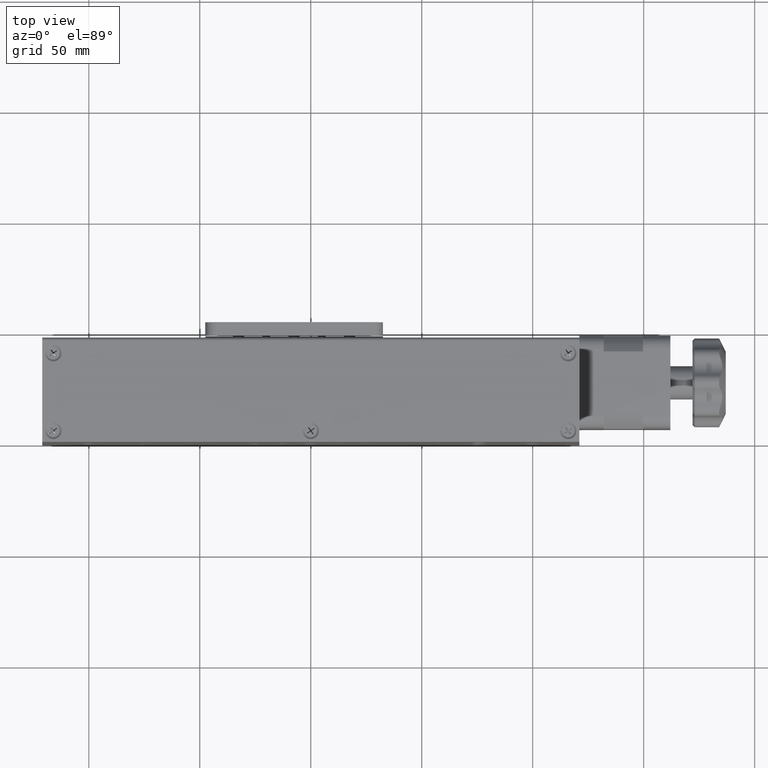
[diagram: clean part render]
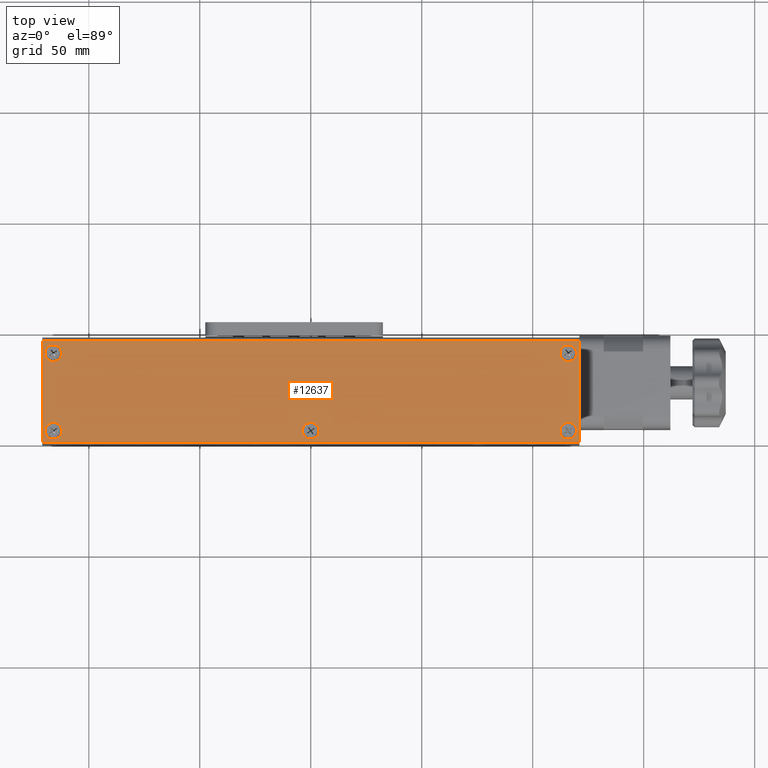
[diagram: same view with one face highlighted and labeled with its STEP entity id]
A machine part, top view. The second image highlights one B-rep face of the part: STEP entity #12637.
In plain terms, the highlighted planar face has unit normal (0, -0, -1).
Its self-contained STEP definition (entity closure, byte-faithful):
#51 = CARTESIAN_POINT ( 'NONE',  ( 121.0000000000000000, 45.50000000000001400, 52.00000000000010700 ) ) ;
#362 = DIRECTION ( 'NONE',  ( 1.000000000000000000, 0.0000000000000000000, 0.0000000000000000000 ) ) ;
#376 = DIRECTION ( 'NONE',  ( 0.0000000000000000000, -1.000000000000000000, 1.525031627232357900E-016 ) ) ;
#579 = CIRCLE ( 'NONE', #1694, 3.750000000000003600 ) ;
#600 = ORIENTED_EDGE ( 'NONE', *, *, #31641, .F. ) ;
#659 = CARTESIAN_POINT ( 'NONE',  ( -112.2499999999999900, 39.99999999999998600, 52.00000000000011400 ) ) ;
#899 = EDGE_LOOP ( 'NONE', ( #24051, #600, #17396, #32157 ) ) ;
#954 = DIRECTION ( 'NONE',  ( 1.000000000000000000, 0.0000000000000000000, 0.0000000000000000000 ) ) ;
#1665 = DIRECTION ( 'NONE',  ( 1.000000000000000000, 0.0000000000000000000, 0.0000000000000000000 ) ) ;
#1694 = AXIS2_PLACEMENT_3D ( 'NONE', #34616, #18078, #1665 ) ;
#2291 = AXIS2_PLACEMENT_3D ( 'NONE', #25366, #8876, #28117 ) ;
#2384 = EDGE_CURVE ( 'NONE', #15927, #9647, #30871, .T. ) ;
#3538 = CARTESIAN_POINT ( 'NONE',  ( -115.9999999999999900, 4.999999999999985800, 52.00000000000011400 ) ) ;
#4715 = DIRECTION ( 'NONE',  ( -0.0000000000000000000, -0.0000000000000000000, 1.000000000000000000 ) ) ;
#4760 = AXIS2_PLACEMENT_3D ( 'NONE', #33927, #17395, #954 ) ;
#5715 = VERTEX_POINT ( 'NONE', #19764 ) ;
#5749 = CARTESIAN_POINT ( 'NONE',  ( -119.7500000000000000, 39.99999999999998600, 52.00000000000011400 ) ) ;
#5826 = CARTESIAN_POINT ( 'NONE',  ( -3.750000000000000000, 5.000000000000015100, 52.00000000000011400 ) ) ;
#6279 = DIRECTION ( 'NONE',  ( 1.000000000000000000, 0.0000000000000000000, 0.0000000000000000000 ) ) ;
#6361 = FACE_BOUND ( 'NONE', #22149, .T. ) ;
#7497 = AXIS2_PLACEMENT_3D ( 'NONE', #33286, #16777, #362 ) ;
#7779 = VECTOR ( 'NONE', #26022, 1000.000000000000000 ) ;
#7856 = PLANE ( 'NONE',  #10056 ) ;
#8191 = AXIS2_PLACEMENT_3D ( 'NONE', #15615, #4715, #21110 ) ;
#8342 = EDGE_CURVE ( 'NONE', #27221, #26449, #34722, .T. ) ;
#8528 = CIRCLE ( 'NONE', #26811, 3.750000000000000000 ) ;
#8848 = DIRECTION ( 'NONE',  ( -0.0000000000000000000, -0.0000000000000000000, 1.000000000000000000 ) ) ;
#8876 = DIRECTION ( 'NONE',  ( -0.0000000000000000000, -0.0000000000000000000, 1.000000000000000000 ) ) ;
#9585 = CIRCLE ( 'NONE', #33686, 3.750000000000003600 ) ;
#9647 = VERTEX_POINT ( 'NONE', #33145 ) ;
#9663 = VERTEX_POINT ( 'NONE', #5826 ) ;
#9979 = AXIS2_PLACEMENT_3D ( 'NONE', #27485, #11044, #30267 ) ;
#10056 = AXIS2_PLACEMENT_3D ( 'NONE', #32747, #16245, #35528 ) ;
#11044 = DIRECTION ( 'NONE',  ( -0.0000000000000000000, -0.0000000000000000000, 1.000000000000000000 ) ) ;
#11578 = ORIENTED_EDGE ( 'NONE', *, *, #22949, .F. ) ;
#11645 = EDGE_CURVE ( 'NONE', #24997, #5715, #17609, .T. ) ;
#11888 = ORIENTED_EDGE ( 'NONE', *, *, #2384, .F. ) ;
#12237 = VERTEX_POINT ( 'NONE', #659 ) ;
#12637 = ADVANCED_FACE ( 'NONE', ( #21816, #6361, #35649, #13640, #34772, #27411 ), #7856, .F. ) ;
#12745 = CARTESIAN_POINT ( 'NONE',  ( -115.9999999999999900, 39.99999999999998600, 52.00000000000011400 ) ) ;
#13640 = FACE_BOUND ( 'NONE', #16489, .T. ) ;
#14325 = VERTEX_POINT ( 'NONE', #18120 ) ;
#14476 = DIRECTION ( 'NONE',  ( -1.000000000000000000, -0.0000000000000000000, -0.0000000000000000000 ) ) ;
#14609 = VERTEX_POINT ( 'NONE', #5749 ) ;
#14858 = CARTESIAN_POINT ( 'NONE',  ( -121.0000000000000000, 45.50000000000001400, 52.00000000000010700 ) ) ;
#14903 = CARTESIAN_POINT ( 'NONE',  ( 119.7500000000000000, 40.00000000000001400, 52.00000000000011400 ) ) ;
#15357 = VERTEX_POINT ( 'NONE', #22995 ) ;
#15530 = DIRECTION ( 'NONE',  ( 1.000000000000000000, 0.0000000000000000000, 0.0000000000000000000 ) ) ;
#15615 = CARTESIAN_POINT ( 'NONE',  ( 115.9999999999999900, 40.00000000000001400, 52.00000000000011400 ) ) ;
#15700 = EDGE_CURVE ( 'NONE', #24997, #29425, #22873, .T. ) ;
#15770 = DIRECTION ( 'NONE',  ( -0.0000000000000000000, -0.0000000000000000000, 1.000000000000000000 ) ) ;
#15927 = VERTEX_POINT ( 'NONE', #14903 ) ;
#16210 = ORIENTED_EDGE ( 'NONE', *, *, #28829, .F. ) ;
#16245 = DIRECTION ( 'NONE',  ( 0.0000000000000000000, -1.525031627232357900E-016, -1.000000000000000000 ) ) ;
#16382 = EDGE_CURVE ( 'NONE', #9647, #15927, #24924, .T. ) ;
#16417 = VECTOR ( 'NONE', #16462, 1000.000000000000000 ) ;
#16462 = DIRECTION ( 'NONE',  ( -1.000000000000000000, -0.0000000000000000000, -0.0000000000000000000 ) ) ;
#16489 = EDGE_LOOP ( 'NONE', ( #17258, #16611 ) ) ;
#16611 = ORIENTED_EDGE ( 'NONE', *, *, #21625, .F. ) ;
#16777 = DIRECTION ( 'NONE',  ( -0.0000000000000000000, -0.0000000000000000000, 1.000000000000000000 ) ) ;
#17010 = CIRCLE ( 'NONE', #32830, 3.750000000000003600 ) ;
#17258 = ORIENTED_EDGE ( 'NONE', *, *, #27124, .F. ) ;
#17356 = ORIENTED_EDGE ( 'NONE', *, *, #8342, .F. ) ;
#17395 = DIRECTION ( 'NONE',  ( -0.0000000000000000000, -0.0000000000000000000, 1.000000000000000000 ) ) ;
#17396 = ORIENTED_EDGE ( 'NONE', *, *, #11645, .F. ) ;
#17609 = LINE ( 'NONE', #30626, #32296 ) ;
#18078 = DIRECTION ( 'NONE',  ( -0.0000000000000000000, -0.0000000000000000000, 1.000000000000000000 ) ) ;
#18120 = CARTESIAN_POINT ( 'NONE',  ( 3.750000000000000000, 5.000000000000014200, 52.00000000000011400 ) ) ;
#18161 = CARTESIAN_POINT ( 'NONE',  ( 121.0000000000000000, 45.50000000000001400, 52.00000000000010700 ) ) ;
#18794 = EDGE_LOOP ( 'NONE', ( #11578, #17356 ) ) ;
#18888 = ORIENTED_EDGE ( 'NONE', *, *, #16382, .F. ) ;
#19764 = CARTESIAN_POINT ( 'NONE',  ( 121.0000000000000000, 1.421085471520200400E-014, 52.00000000000011400 ) ) ;
#20438 = CARTESIAN_POINT ( 'NONE',  ( -121.0000000000000000, 45.50000000000001400, 52.00000000000010700 ) ) ;
#21110 = DIRECTION ( 'NONE',  ( 1.000000000000000000, 0.0000000000000000000, 0.0000000000000000000 ) ) ;
#21279 = CARTESIAN_POINT ( 'NONE',  ( 112.2499999999999900, 5.000000000000015100, 52.00000000000011400 ) ) ;
#21625 = EDGE_CURVE ( 'NONE', #14609, #12237, #579, .T. ) ;
#21816 = FACE_BOUND ( 'NONE', #18794, .T. ) ;
#22149 = EDGE_LOOP ( 'NONE', ( #11888, #18888 ) ) ;
#22346 = LINE ( 'NONE', #20438, #7779 ) ;
#22491 = ORIENTED_EDGE ( 'NONE', *, *, #34650, .F. ) ;
#22731 = DIRECTION ( 'NONE',  ( -0.0000000000000000000, -0.0000000000000000000, 1.000000000000000000 ) ) ;
#22873 = LINE ( 'NONE', #51, #16417 ) ;
#22949 = EDGE_CURVE ( 'NONE', #26449, #27221, #33195, .T. ) ;
#22995 = CARTESIAN_POINT ( 'NONE',  ( -112.2499999999999900, 4.999999999999985800, 52.00000000000011400 ) ) ;
#23000 = EDGE_LOOP ( 'NONE', ( #22491, #35680 ) ) ;
#23413 = EDGE_LOOP ( 'NONE', ( #32490, #16210 ) ) ;
#23643 = EDGE_CURVE ( 'NONE', #29425, #28462, #22346, .T. ) ;
#24051 = ORIENTED_EDGE ( 'NONE', *, *, #23643, .T. ) ;
#24924 = CIRCLE ( 'NONE', #29188, 3.750000000000003600 ) ;
#24997 = VERTEX_POINT ( 'NONE', #18161 ) ;
#25324 = CARTESIAN_POINT ( 'NONE',  ( -119.7500000000000000, 4.999999999999985800, 52.00000000000011400 ) ) ;
#25339 = CARTESIAN_POINT ( 'NONE',  ( 115.9999999999999900, 40.00000000000001400, 52.00000000000011400 ) ) ;
#25347 = EDGE_CURVE ( 'NONE', #31553, #15357, #9585, .T. ) ;
#25366 = CARTESIAN_POINT ( 'NONE',  ( 115.9999999999999900, 5.000000000000014200, 52.00000000000011400 ) ) ;
#26022 = DIRECTION ( 'NONE',  ( 0.0000000000000000000, -1.000000000000000000, 1.525031627232357900E-016 ) ) ;
#26449 = VERTEX_POINT ( 'NONE', #30602 ) ;
#26811 = AXIS2_PLACEMENT_3D ( 'NONE', #32272, #15770, #35026 ) ;
#27124 = EDGE_CURVE ( 'NONE', #12237, #14609, #17010, .T. ) ;
#27221 = VERTEX_POINT ( 'NONE', #21279 ) ;
#27411 = FACE_OUTER_BOUND ( 'NONE', #899, .T. ) ;
#27485 = CARTESIAN_POINT ( 'NONE',  ( 0.0000000000000000000, 5.000000000000014200, 52.00000000000011400 ) ) ;
#28084 = DIRECTION ( 'NONE',  ( 1.000000000000000000, 0.0000000000000000000, 0.0000000000000000000 ) ) ;
#28117 = DIRECTION ( 'NONE',  ( 1.000000000000000000, 0.0000000000000000000, 0.0000000000000000000 ) ) ;
#28462 = VERTEX_POINT ( 'NONE', #33494 ) ;
#28829 = EDGE_CURVE ( 'NONE', #9663, #14325, #8528, .T. ) ;
#29188 = AXIS2_PLACEMENT_3D ( 'NONE', #25339, #8848, #28084 ) ;
#29229 = EDGE_CURVE ( 'NONE', #14325, #9663, #35622, .T. ) ;
#29249 = VECTOR ( 'NONE', #14476, 1000.000000000000000 ) ;
#29425 = VERTEX_POINT ( 'NONE', #14858 ) ;
#30108 = LINE ( 'NONE', #33769, #29249 ) ;
#30267 = DIRECTION ( 'NONE',  ( 1.000000000000000000, 0.0000000000000000000, 0.0000000000000000000 ) ) ;
#30602 = CARTESIAN_POINT ( 'NONE',  ( 119.7500000000000000, 5.000000000000014200, 52.00000000000011400 ) ) ;
#30626 = CARTESIAN_POINT ( 'NONE',  ( 121.0000000000000000, 45.50000000000001400, 52.00000000000010700 ) ) ;
#30871 = CIRCLE ( 'NONE', #8191, 3.750000000000003600 ) ;
#31553 = VERTEX_POINT ( 'NONE', #25324 ) ;
#31641 = EDGE_CURVE ( 'NONE', #5715, #28462, #30108, .T. ) ;
#32035 = DIRECTION ( 'NONE',  ( -0.0000000000000000000, -0.0000000000000000000, 1.000000000000000000 ) ) ;
#32157 = ORIENTED_EDGE ( 'NONE', *, *, #15700, .T. ) ;
#32272 = CARTESIAN_POINT ( 'NONE',  ( 0.0000000000000000000, 5.000000000000014200, 52.00000000000011400 ) ) ;
#32296 = VECTOR ( 'NONE', #376, 1000.000000000000000 ) ;
#32490 = ORIENTED_EDGE ( 'NONE', *, *, #29229, .F. ) ;
#32747 = CARTESIAN_POINT ( 'NONE',  ( 121.0000000000000000, 45.50000000000001400, 52.00000000000010700 ) ) ;
#32830 = AXIS2_PLACEMENT_3D ( 'NONE', #12745, #32035, #15530 ) ;
#33145 = CARTESIAN_POINT ( 'NONE',  ( 112.2499999999999900, 40.00000000000001400, 52.00000000000011400 ) ) ;
#33195 = CIRCLE ( 'NONE', #4760, 3.750000000000003600 ) ;
#33286 = CARTESIAN_POINT ( 'NONE',  ( -115.9999999999999900, 4.999999999999985800, 52.00000000000011400 ) ) ;
#33494 = CARTESIAN_POINT ( 'NONE',  ( -121.0000000000000000, 1.421085471520200400E-014, 52.00000000000011400 ) ) ;
#33686 = AXIS2_PLACEMENT_3D ( 'NONE', #3538, #22731, #6279 ) ;
#33769 = CARTESIAN_POINT ( 'NONE',  ( 121.0000000000000000, 1.421085471520200400E-014, 52.00000000000011400 ) ) ;
#33927 = CARTESIAN_POINT ( 'NONE',  ( 115.9999999999999900, 5.000000000000014200, 52.00000000000011400 ) ) ;
#34616 = CARTESIAN_POINT ( 'NONE',  ( -115.9999999999999900, 39.99999999999998600, 52.00000000000011400 ) ) ;
#34650 = EDGE_CURVE ( 'NONE', #15357, #31553, #35221, .T. ) ;
#34722 = CIRCLE ( 'NONE', #2291, 3.750000000000003600 ) ;
#34772 = FACE_BOUND ( 'NONE', #23000, .T. ) ;
#35026 = DIRECTION ( 'NONE',  ( 1.000000000000000000, 0.0000000000000000000, 0.0000000000000000000 ) ) ;
#35221 = CIRCLE ( 'NONE', #7497, 3.750000000000003600 ) ;
#35528 = DIRECTION ( 'NONE',  ( 0.0000000000000000000, 1.000000000000000000, -1.525031627232357900E-016 ) ) ;
#35622 = CIRCLE ( 'NONE', #9979, 3.750000000000000000 ) ;
#35649 = FACE_BOUND ( 'NONE', #23413, .T. ) ;
#35680 = ORIENTED_EDGE ( 'NONE', *, *, #25347, .F. ) ;